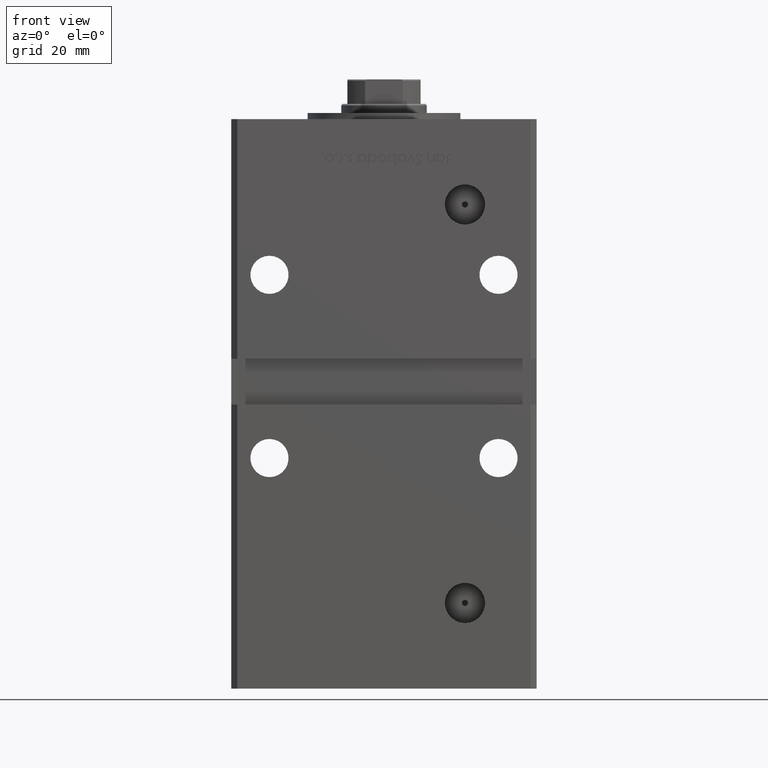
[diagram: clean part render]
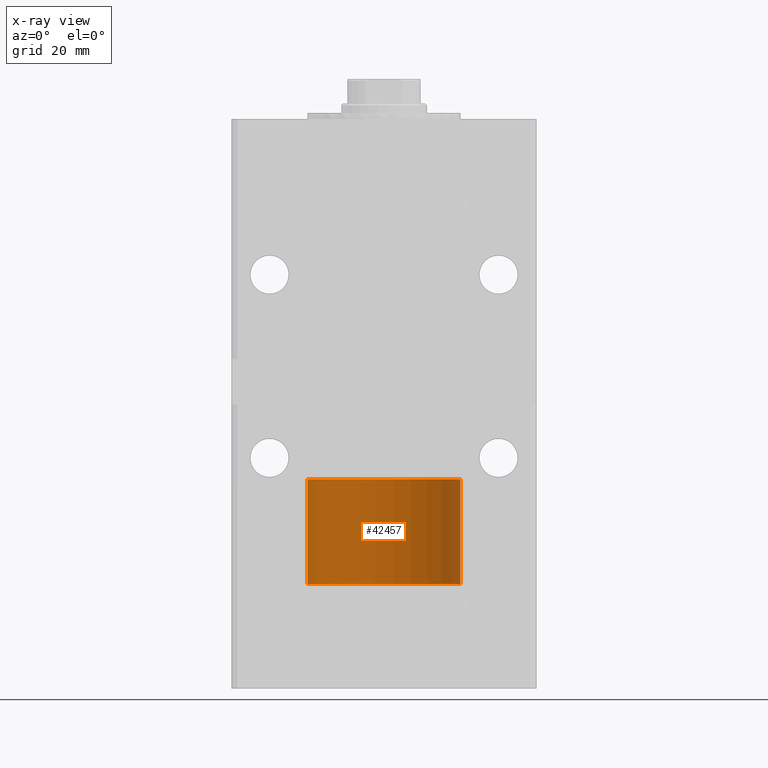
[diagram: x-ray — body ghosted, one internal face saturated and labeled with its STEP entity id]
A machine part, front view, then the same camera in x-ray: the body is ghosted and one INTERNAL B-rep face — a face not visible from any outside direction — is saturated and labeled: STEP entity #42457.
In plain terms, the highlighted cylindrical surface (partial cylindrical patch) has radius 25 mm, axis along (-0, -0, -1).
Its self-contained STEP definition (entity closure, byte-faithful):
#1484 = ORIENTED_EDGE ( 'NONE', *, *, #4417, .F. ) ;
#2263 = LINE ( 'NONE', #30781, #13382 ) ;
#2745 = AXIS2_PLACEMENT_3D ( 'NONE', #40913, #41989, #49509 ) ;
#3833 = CARTESIAN_POINT ( 'NONE',  ( -25.00000000000000000, 0.000000000000000000, 34.25000000000000000 ) ) ;
#4343 = CARTESIAN_POINT ( 'NONE',  ( -25.00000000000000000, 0.000000000000000000, 0.000000000000000000 ) ) ;
#4417 = EDGE_CURVE ( 'NONE', #19822, #38818, #2263, .T. ) ;
#4967 = DIRECTION ( 'NONE',  ( 1.000000000000000000, 0.000000000000000000, 0.000000000000000000 ) ) ;
#5662 = EDGE_CURVE ( 'NONE', #45006, #18993, #40109, .T. ) ;
#12560 = CIRCLE ( 'NONE', #42676, 25.00000000000000000 ) ;
#13382 = VECTOR ( 'NONE', #21894, 1000.000000000000000 ) ;
#14808 = DIRECTION ( 'NONE',  ( 1.000000000000000000, 0.000000000000000000, 0.000000000000000000 ) ) ;
#16836 = VECTOR ( 'NONE', #36071, 1000.000000000000000 ) ;
#17786 = CARTESIAN_POINT ( 'NONE',  ( 0.000000000000000000, 0.000000000000000000, 0.000000000000000000 ) ) ;
#18026 = ORIENTED_EDGE ( 'NONE', *, *, #25369, .F. ) ;
#18042 = EDGE_CURVE ( 'NONE', #18993, #38818, #12560, .T. ) ;
#18928 = EDGE_LOOP ( 'NONE', ( #18026, #31313, #23158, #1484 ) ) ;
#18993 = VERTEX_POINT ( 'NONE', #20413 ) ;
#19822 = VERTEX_POINT ( 'NONE', #3833 ) ;
#20373 = AXIS2_PLACEMENT_3D ( 'NONE', #20540, #41831, #4967 ) ;
#20413 = CARTESIAN_POINT ( 'NONE',  ( 25.00000000000000000, 3.061616997868383043E-15, 0.000000000000000000 ) ) ;
#20540 = CARTESIAN_POINT ( 'NONE',  ( 0.000000000000000000, 0.000000000000000000, 34.25000000000000000 ) ) ;
#21238 = FACE_OUTER_BOUND ( 'NONE', #18928, .T. ) ;
#21894 = DIRECTION ( 'NONE',  ( -0.000000000000000000, -0.000000000000000000, -1.000000000000000000 ) ) ;
#22867 = DIRECTION ( 'NONE',  ( 0.000000000000000000, 0.000000000000000000, 1.000000000000000000 ) ) ;
#23158 = ORIENTED_EDGE ( 'NONE', *, *, #18042, .T. ) ;
#25369 = EDGE_CURVE ( 'NONE', #45006, #19822, #48738, .T. ) ;
#30781 = CARTESIAN_POINT ( 'NONE',  ( -25.00000000000000000, 0.000000000000000000, 34.25000000000000000 ) ) ;
#31313 = ORIENTED_EDGE ( 'NONE', *, *, #5662, .T. ) ;
#36071 = DIRECTION ( 'NONE',  ( -0.000000000000000000, -0.000000000000000000, -1.000000000000000000 ) ) ;
#38818 = VERTEX_POINT ( 'NONE', #4343 ) ;
#40109 = LINE ( 'NONE', #47915, #16836 ) ;
#40150 = CARTESIAN_POINT ( 'NONE',  ( 25.00000000000000000, 3.061616997868383043E-15, 34.25000000000000000 ) ) ;
#40913 = CARTESIAN_POINT ( 'NONE',  ( 0.000000000000000000, 0.000000000000000000, 34.25000000000000000 ) ) ;
#41831 = DIRECTION ( 'NONE',  ( 0.000000000000000000, 0.000000000000000000, 1.000000000000000000 ) ) ;
#41989 = DIRECTION ( 'NONE',  ( -0.000000000000000000, -0.000000000000000000, -1.000000000000000000 ) ) ;
#42457 = ADVANCED_FACE ( 'NONE', ( #21238 ), #44958, .T. ) ;
#42676 = AXIS2_PLACEMENT_3D ( 'NONE', #17786, #22867, #14808 ) ;
#44958 = CYLINDRICAL_SURFACE ( 'NONE', #2745, 25.00000000000000000 ) ;
#45006 = VERTEX_POINT ( 'NONE', #40150 ) ;
#47915 = CARTESIAN_POINT ( 'NONE',  ( 25.00000000000000000, 3.061616997868383043E-15, 34.25000000000000000 ) ) ;
#48738 = CIRCLE ( 'NONE', #20373, 25.00000000000000000 ) ;
#49509 = DIRECTION ( 'NONE',  ( -1.000000000000000000, 0.000000000000000000, 0.000000000000000000 ) ) ;